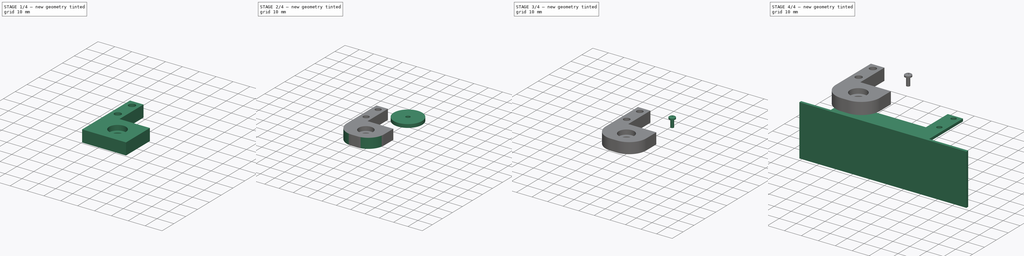
[diagram: build sequence overview — one tinted view per stage of 4, left to right]
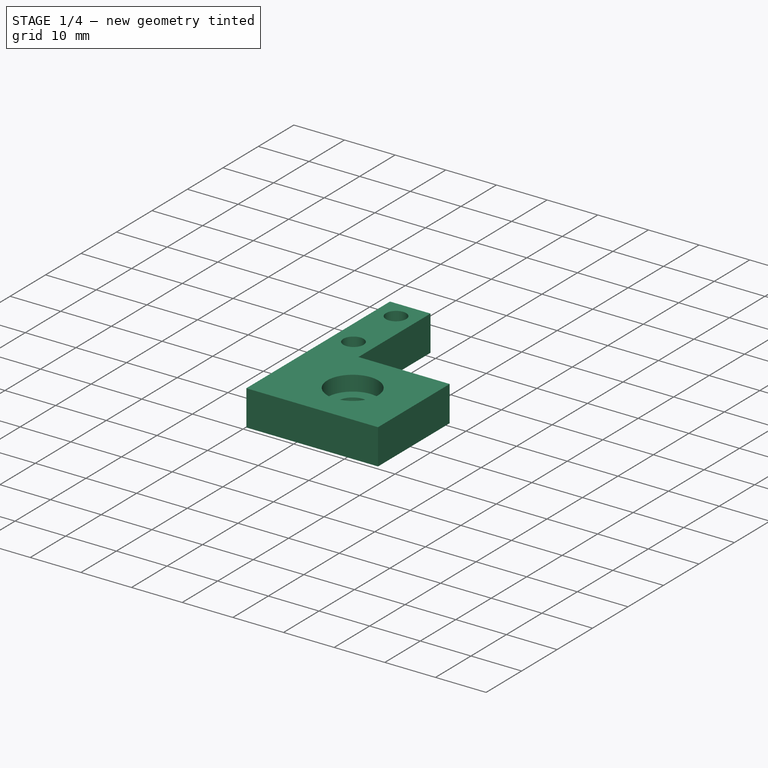
[diagram: stage 1 of 4 — iso view after this stage's code; geometry added in this stage tinted green]
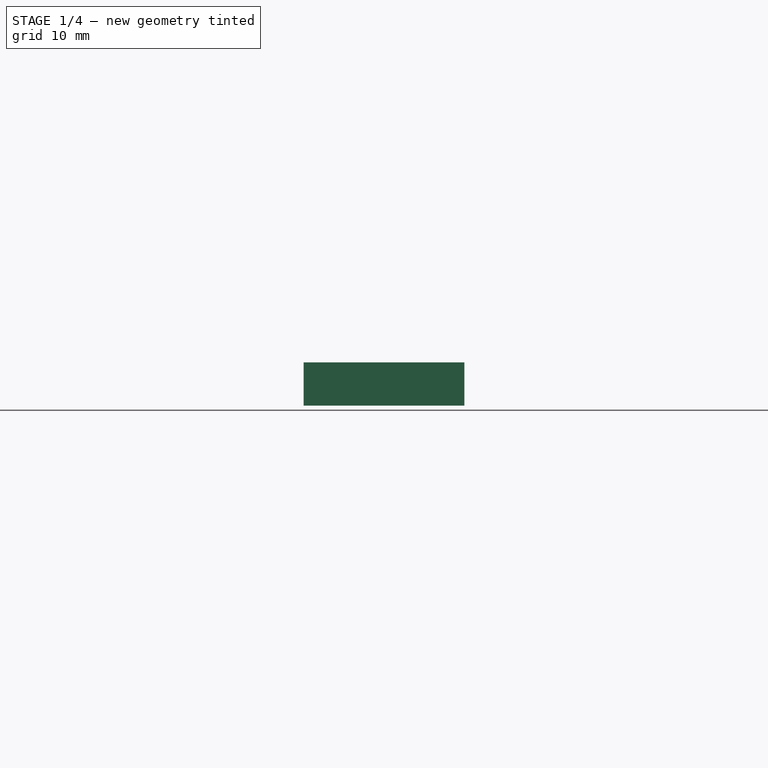
[diagram: stage 1 of 4 — front view after this stage's code; geometry added in this stage tinted green]
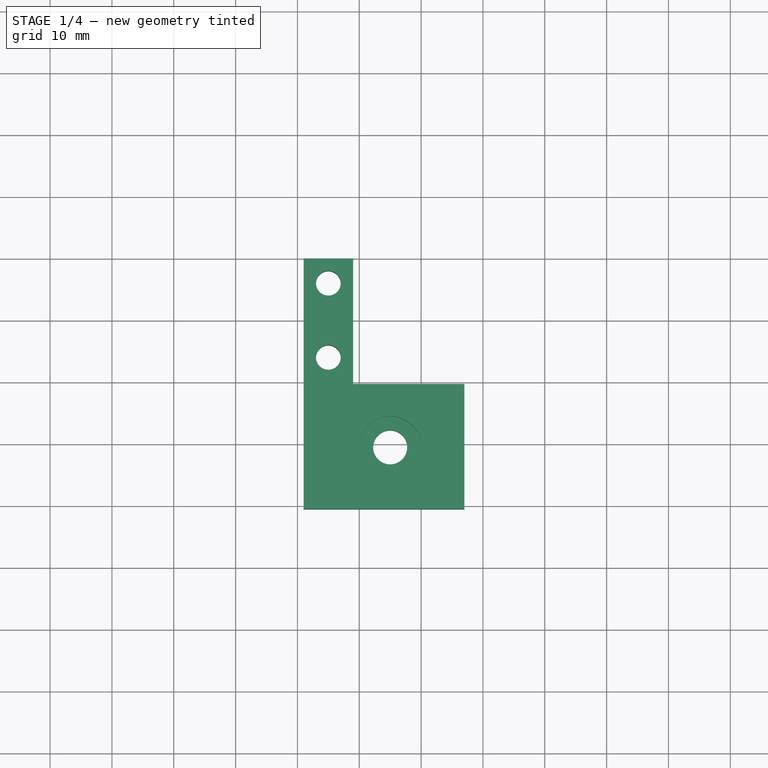
[diagram: stage 1 of 4 — top view after this stage's code; geometry added in this stage tinted green]
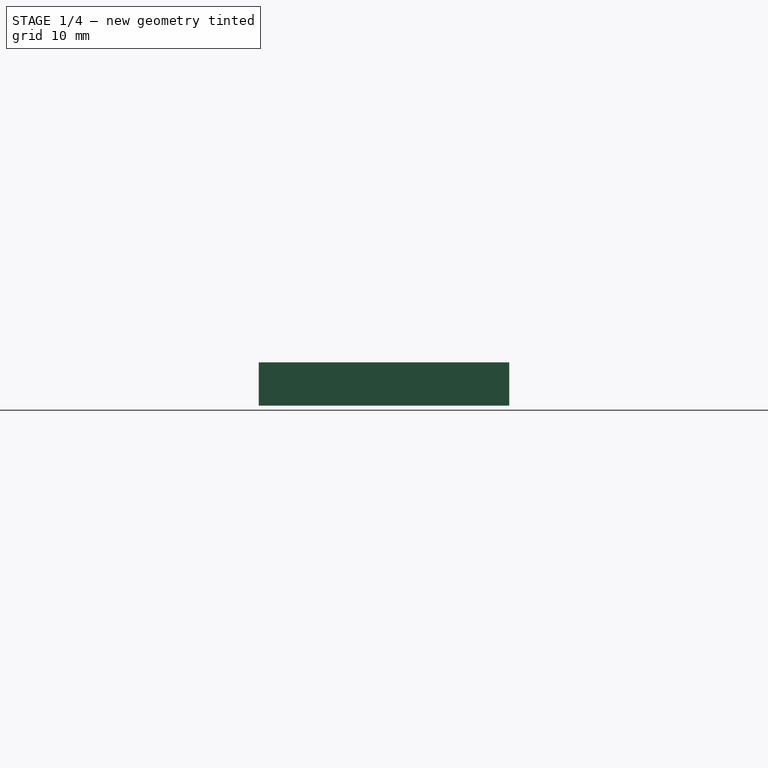
[diagram: stage 1 of 4 — right view after this stage's code; geometry added in this stage tinted green]
FCSTD DOCUMENT  (FreeCAD 0.21R33771 (Git))
Label: servo_DS3218MG
License: All rights reserved
LicenseURL: http://en.wikipedia.org/wiki/All_rights_reserved
objects: Sketcher::SketchObject×6, Part::Feature×3, PartDesign::Body×3, App::Part×3, PartDesign::Pocket×2, PartDesign::Pad×2, App::Link×2, PartDesign::Revolution×1, PartDesign::PolarPattern×1, Part::FeaturePython×1, PartDesign::Hole×1, PartDesign::Fillet×1
note: 28 computed .brp shape members not serialized (recipe doc carries the construction recipe); baked Part::Feature solids carry a one-line shape summary decoded from their .brp

FEATURE [PartDesign::Body] Body001  label="Corps001"
  Group = -> [Sketch002,Pad,Sketch003,Pocket001]
  Origin = -> Origin004
  Placement = pos=(-7,0,0) rot=(0,0,1;0rad)
  Tip = -> Pocket001
FEATURE [App::Link] Link  label="servo_DS3218MG001"
  LinkedObject = -> Part001
FEATURE [App::Part] Part002  label="support_servo_1"
  Group = -> [Body001,Link]
  Origin = -> Origin003
FEATURE [App::Link] Link001  label="servo_DS3218MG002"
  LinkedObject = -> Part001
FEATURE [Sketcher::SketchObject] Sketch004
  FullyConstrained = true
  MapMode = 5
  Placement = pos=(0,0,0) rot=(0,1,0;3.14159rad)
  Support = -> [XY_Plane005]
  sketch-geometry (9):
    g0: LineSegment StartX=29 StartY=10 StartZ=0 EndX=29 EndY=-30.5 EndZ=0
    g1: LineSegment StartX=29 StartY=-30.5 StartZ=0 EndX=3 EndY=-30.5 EndZ=0
    g2: LineSegment StartX=3 StartY=-30.5 StartZ=0 EndX=3 EndY=-10.3 EndZ=0
    g3: LineSegment StartX=3 StartY=-10.3 StartZ=0 EndX=21 EndY=-10.3 EndZ=0
    g4: LineSegment StartX=21 StartY=-10.3 StartZ=0 EndX=21 EndY=10 EndZ=0
    g5: LineSegment StartX=29 StartY=10 StartZ=0 EndX=21 EndY=10 EndZ=0
    g6: Circle CenterX=25 CenterY=6 CenterZ=0 NormalX=0 NormalY=0 NormalZ=1 AngleXU=0 Radius=2
    g7: Circle CenterX=25 CenterY=-6 CenterZ=0 NormalX=0 NormalY=0 NormalZ=1 AngleXU=0 Radius=2
    g8: GeomPoint X=25 Y=10 Z=0
  constraints (24):
    c: Vertical(g0)
    c: Coincident(g1,g2)
    c: Coincident(g2,g3)
    c: Coincident(g3,g4)
    c: Horizontal(g1)
    c: Horizontal(g3)
    c: Vertical(g2)
    c: Vertical(g4)
    c: Coincident(g0,g1)
    c: Coincident(g5,g0)
    c: Horizontal(g5)
    c: DistanceY(g-1,g5) = 10
    c: DistanceX(g3,g0) = 8
    c: Coincident(g4,g5)
    c: Symmetric(g7,g6,g-1)
    c: Equal(g7,g6)
    c: Diameter(g6) = 4
    c: DistanceX(g6) = 25
    c: DistanceY(g6) = 6
    c: Vertical(g8,g6)
    c: Symmetric(g4,g0,g8)
    c: DistanceY(g2,g-1) = 10.3
    c: DistanceY(g0,g0) = 40.5
    c: DistanceX(g3,g3) = 18
FEATURE [PartDesign::Pad] Pad001
  Direction = (0,0,-1)
  Length = 7
  Length2 = 10
  Profile = -> Sketch004
  ReferenceAxis = -> Sketch004 [N_Axis]
  Type = 0
FEATURE [Sketcher::SketchObject] Sketch005
  FullyConstrained = false
  MapMode = 5
  Support = -> [XY_Plane005]
  sketch-geometry (1):
    g0: Circle CenterX=-15 CenterY=-20.5 CenterZ=0 NormalX=0 NormalY=0 NormalZ=1 AngleXU=0 Radius=4.8517
  constraints (2):
    c: DistanceY(g0,g-1) = 20.5
    c: DistanceX(g0,g-1) = 15
FEATURE [PartDesign::Hole] Hole
  BaseFeature = -> Pad001
  CustomThreadClearance = 0
  Depth = 25
  DepthType = 0
  Diameter = 5.5
  DrillForDepth = false
  DrillPoint = 1
  DrillPointAngle = 118
  HoleCutCountersinkAngle = 90
  HoleCutCustomValues = false
  HoleCutDepth = 3
  HoleCutDiameter = 10
  HoleCutType = 1
  ModelThread = false
  Profile = -> Sketch005
  Tapered = false
  TaperedAngle = 90
  ThreadClass = 0
  ThreadDepth = 25
  ThreadDepthType = 0
  ThreadDirection = 0
  ThreadFit = 0
  ThreadSize = 13
  ThreadType = 1
  Threaded = false
  UseCustomThreadClearance = false
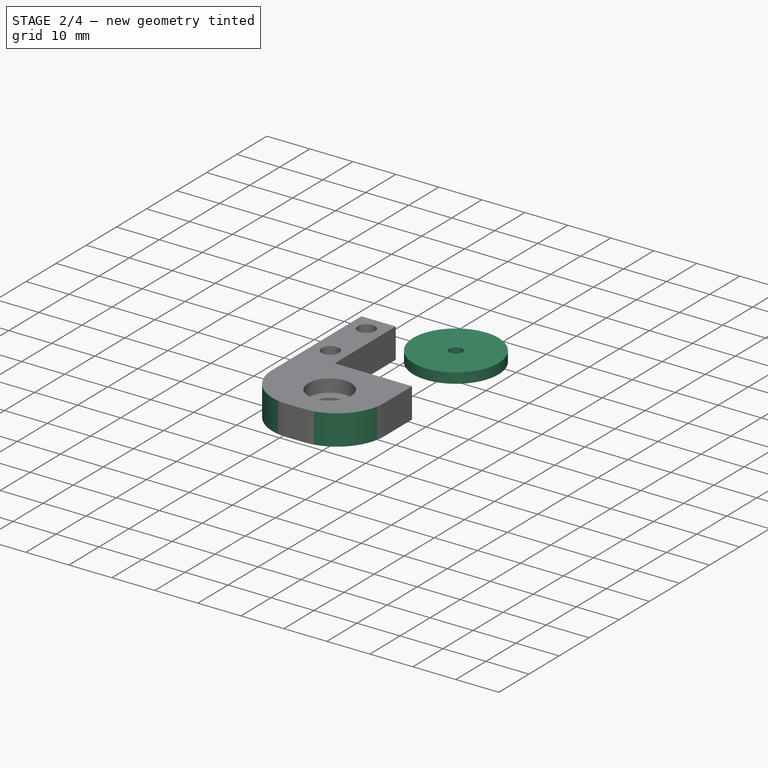
[diagram: stage 2 of 4 — iso view after this stage's code; geometry added in this stage tinted green]
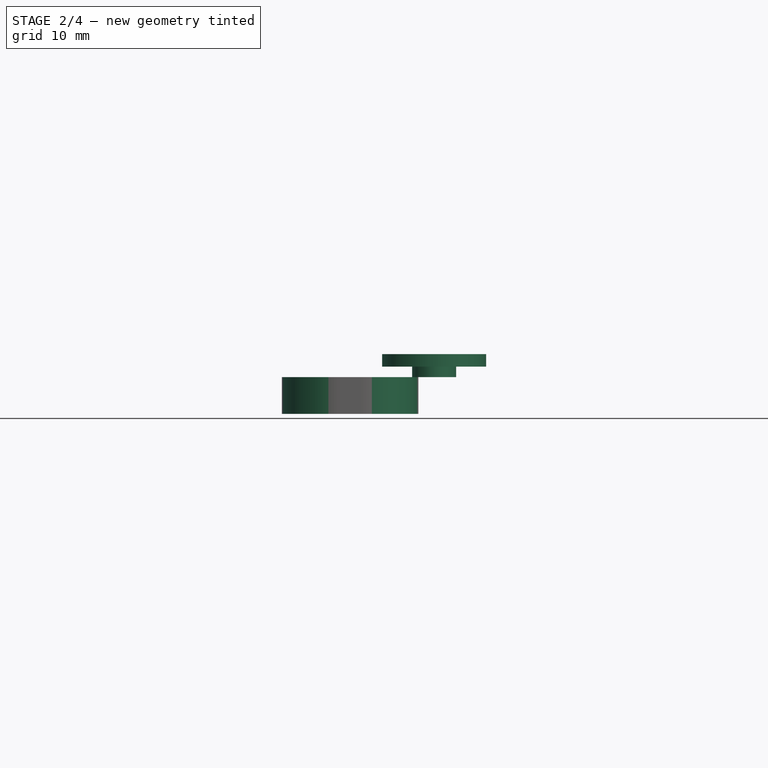
[diagram: stage 2 of 4 — front view after this stage's code; geometry added in this stage tinted green]
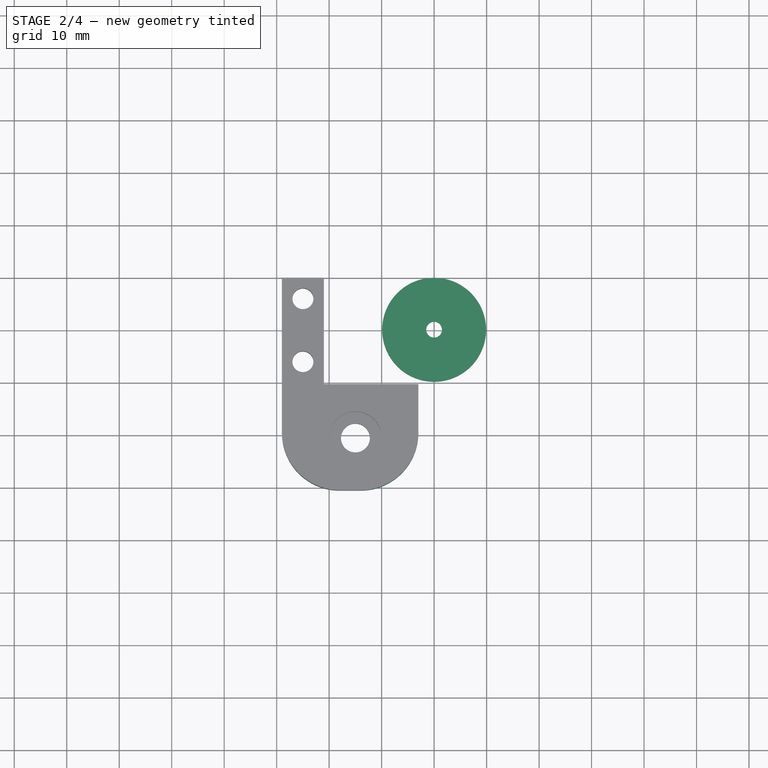
[diagram: stage 2 of 4 — top view after this stage's code; geometry added in this stage tinted green]
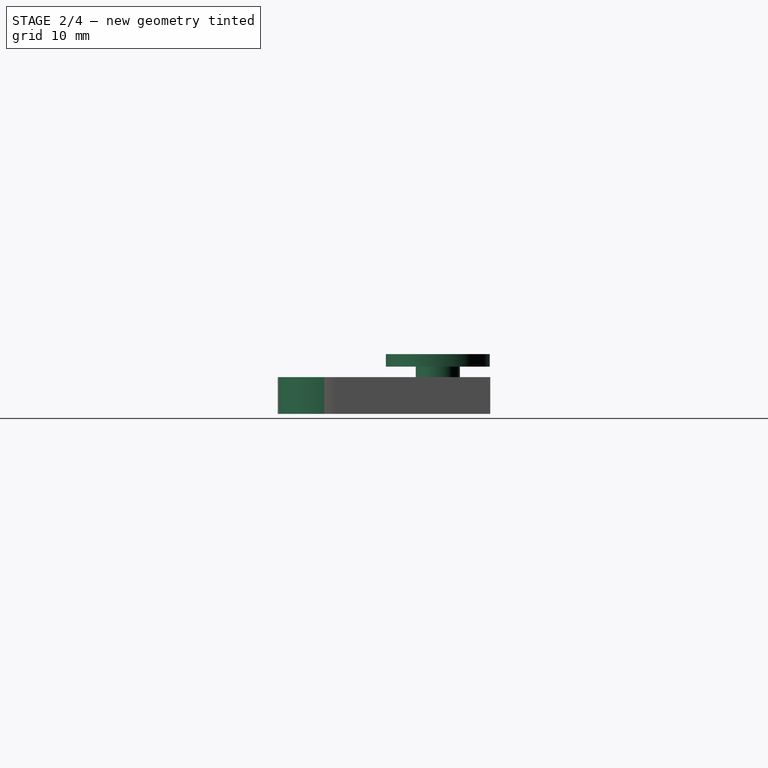
[diagram: stage 2 of 4 — right view after this stage's code; geometry added in this stage tinted green]
FEATURE [Part::Feature] Part__Feature  label="Lever 25T"
  Placement = pos=(0,0,0) rot=(-1,0,0;1.5708rad)
  shape: bbox 18.84 x 33.03 x 6.019 mm, 125 faces (baked)
FEATURE [Part::Feature] Part__Feature001  label="Axis Servo"
  Placement = pos=(0,0,0) rot=(-1,0,0;1.5708rad)
  shape: bbox 5 x 5 x 8 mm, 5 faces (baked)
FEATURE [Part::Feature] Part__Feature002  label="Servo DS3218MG"
  Placement = pos=(0,0,0) rot=(-1,0,0;1.5708rad)
  shape: bbox 55 x 20 x 41 mm, 772 faces (baked)
FEATURE [Sketcher::SketchObject] Sketch001
  FullyConstrained = true
  MapMode = 5
  Support = -> [XY_Plane002]
  sketch-geometry (1):
    g0: Circle CenterX=-7 CenterY=0 CenterZ=0 NormalX=0 NormalY=0 NormalZ=1 AngleXU=0 Radius=1.2
  constraints (3):
    c: PointOnObject(g0,g-1)
    c: Diameter(g0) = 2.4
    c: DistanceX(g0,g-1) = 7
FEATURE [Sketcher::SketchObject] Sketch
  FullyConstrained = true
  MapMode = 5
  Placement = pos=(0,0,0) rot=(1,0,0;1.5708rad)
  Support = -> [XZ_Plane002]
  expr: Constraints[19] = 19.8 / 2
  sketch-geometry (8):
    g0: LineSegment StartX=2.5 StartY=3.4 StartZ=0 EndX=2.5 EndY=0 EndZ=0
    g1: LineSegment StartX=2.5 StartY=0 StartZ=0 EndX=4.2 EndY=0 EndZ=0
    g2: LineSegment StartX=4.2 StartY=0 StartZ=0 EndX=4.2 EndY=2 EndZ=0
    g3: LineSegment StartX=4.2 StartY=2 StartZ=0 EndX=9.9 EndY=2 EndZ=0
    g4: LineSegment StartX=9.9 StartY=2 StartZ=0 EndX=9.9 EndY=4.4 EndZ=0
    g5: LineSegment StartX=9.9 StartY=4.4 StartZ=0 EndX=1.5 EndY=4.4 EndZ=0
    g6: LineSegment StartX=1.5 StartY=4.4 StartZ=0 EndX=1.5 EndY=3.4 EndZ=0
    g7: LineSegment StartX=1.5 StartY=3.4 StartZ=0 EndX=2.5 EndY=3.4 EndZ=0
  constraints (24):
    c: PointOnObject(g0,g-1)
    c: Vertical(g0)
    c: Coincident(g1,g0)
    c: PointOnObject(g1,g-1)
    c: Coincident(g2,g1)
    c: Vertical(g2)
    c: Coincident(g3,g2)
    c: Horizontal(g3)
    c: Coincident(g4,g3)
    c: Vertical(g4)
    c: Coincident(g5,g4)
    c: Horizontal(g5)
    c: Coincident(g6,g5)
    c: Coincident(g7,g6)
    c: Coincident(g7,g0)
    c: Horizontal(g7)
    c: Vertical(g6)
    c: DistanceY(g4,g4) = 2.4
    c: DistanceY(g2,g2) = 2
    c: DistanceX(g-1,g4) = 9.9
    c: DistanceX(g-1,g6) = 1.5
    c: DistanceY(g0,g0) = 3.4
    c: DistanceX(g-1,g0) = 2.5
    c: DistanceX(g1,g1) = 1.7
FEATURE [PartDesign::Revolution] Revolution
  Angle = 360
  Axis = (0,2e-16,1)
  Base = (0,0,0)
  Placement = pos=(0,0,0) rot=(1,0,0;1.5708rad)
  Profile = -> Sketch
  ReferenceAxis = -> Sketch [V_Axis]
  Reversed = true
FEATURE [PartDesign::Fillet] Fillet
  Base = -> Hole [Edge2,Edge8]
  BaseFeature = -> Hole
  Radius = 11
  SupportTransform = false
  UseAllEdges = false
FEATURE [PartDesign::Body] Body002  label="Corps002"
  Group = -> [Sketch004,Pad001,Sketch005,Hole,Fillet]
  Origin = -> Origin005
  Placement = pos=(-9.5,0,-14) rot=(0,0,1;0rad)
  Tip = -> Fillet
FEATURE [App::Part] Part  label="support_servo_2"
  Group = -> [Link001,Body002]
  Origin = -> Origin
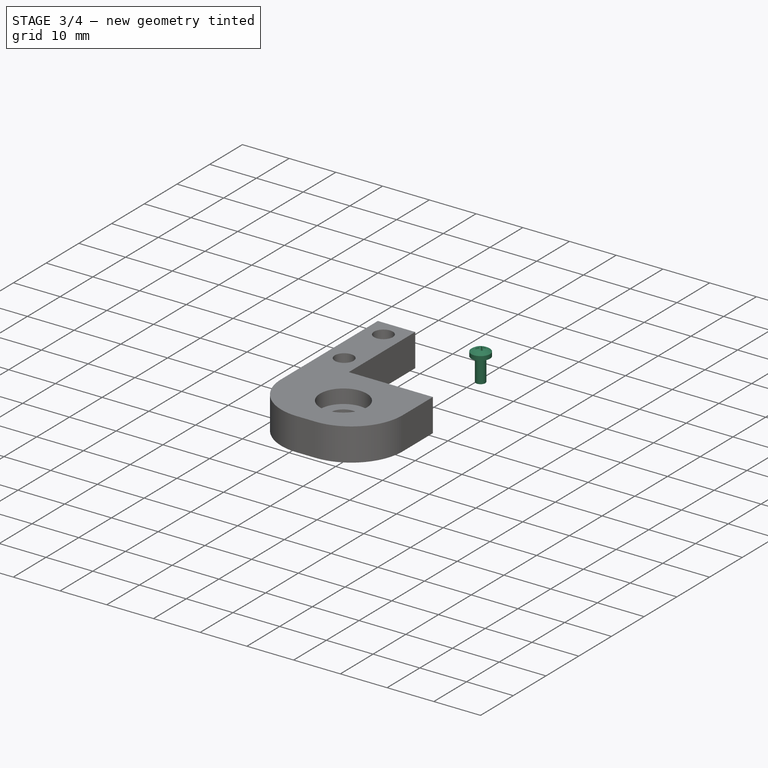
[diagram: stage 3 of 4 — iso view after this stage's code; geometry added in this stage tinted green]
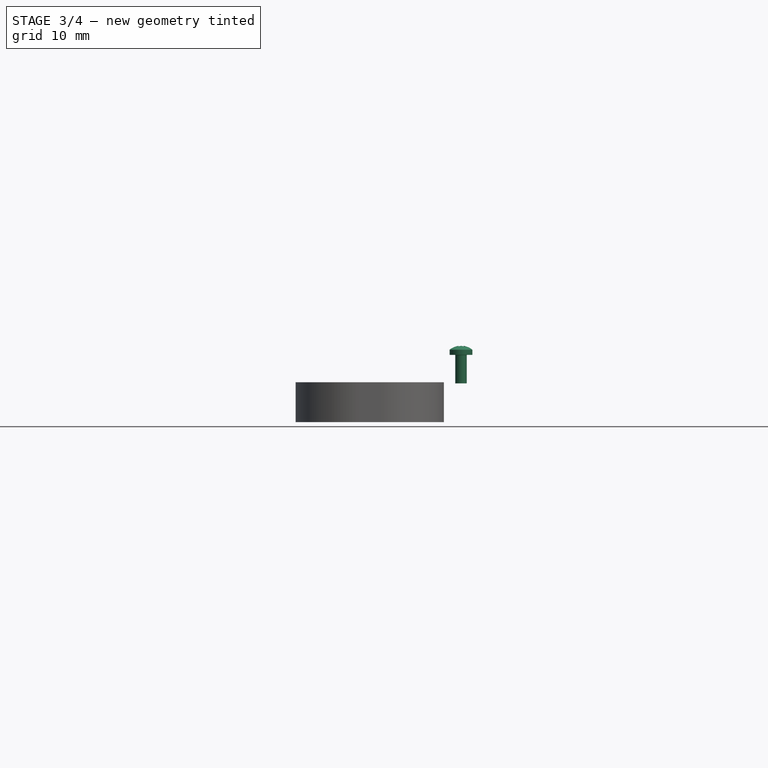
[diagram: stage 3 of 4 — front view after this stage's code; geometry added in this stage tinted green]
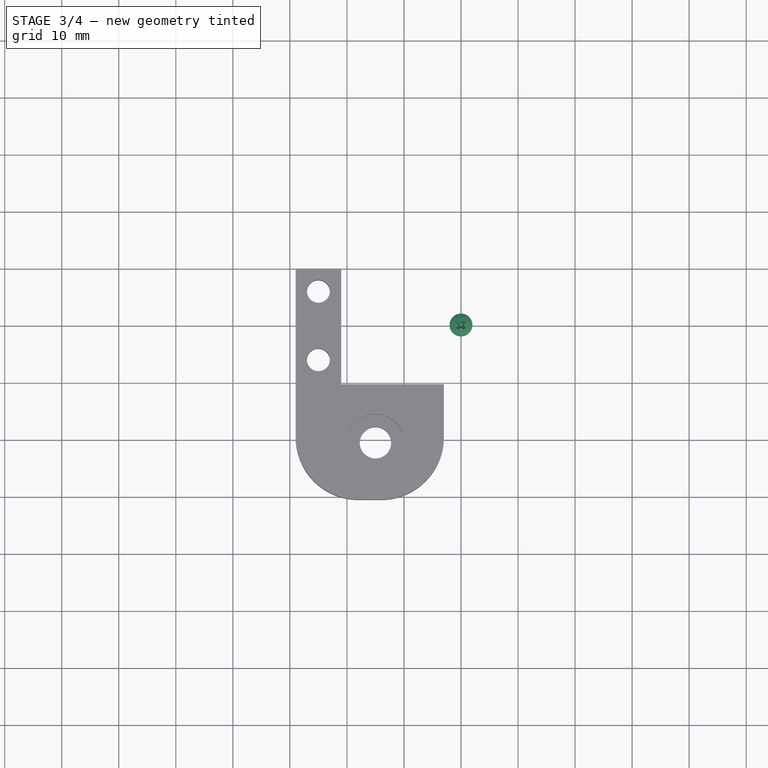
[diagram: stage 3 of 4 — top view after this stage's code; geometry added in this stage tinted green]
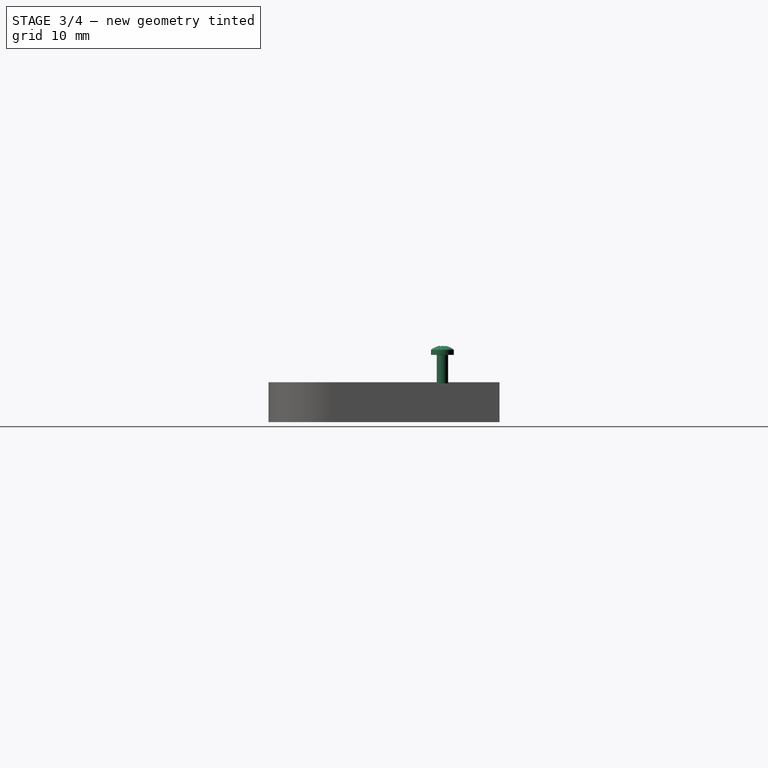
[diagram: stage 3 of 4 — right view after this stage's code; geometry added in this stage tinted green]
FEATURE [PartDesign::Pocket] Pocket
  BaseFeature = -> Revolution
  Direction = (0,0,-1)
  Length = 5
  Length2 = 5
  Midplane = true
  Placement = pos=(0,0,0) rot=(1,0,0;1.5708rad)
  Profile = -> Sketch001
  ReferenceAxis = -> Sketch001 [N_Axis]
  Type = 1
FEATURE [PartDesign::PolarPattern] PolarPattern
  Angle = 360
  Axis = -> Sketch001 [N_Axis]
  BaseFeature = -> Pocket
  Occurrences = 4
  Originals = -> [Pocket]
  Placement = pos=(0,0,0) rot=(1,0,0;1.5708rad)
FEATURE [PartDesign::Body] Body  label="Corps"
  Group = -> [Sketch,Revolution,Sketch001,Pocket,PolarPattern]
  Origin = -> Origin002
  Placement = pos=(0,0,0.4) rot=(0,0,1;0rad)
  Tip = -> PolarPattern
FEATURE [Part::FeaturePython] Screw002  label="M2x5-Vis"  # Fasteners workbench fastener (typed FeaturePython)
  Placement = pos=(0,3.4e-15,4.8) rot=(0,0,1;0rad)
  baseObject = -> Body [Edge6]
  diameter = 2
  invert = true
  leftHanded = false
  length = 10
  lengthCustom = 5
  matchOuter = false
  offset = 0
  thread = false
  type = 75
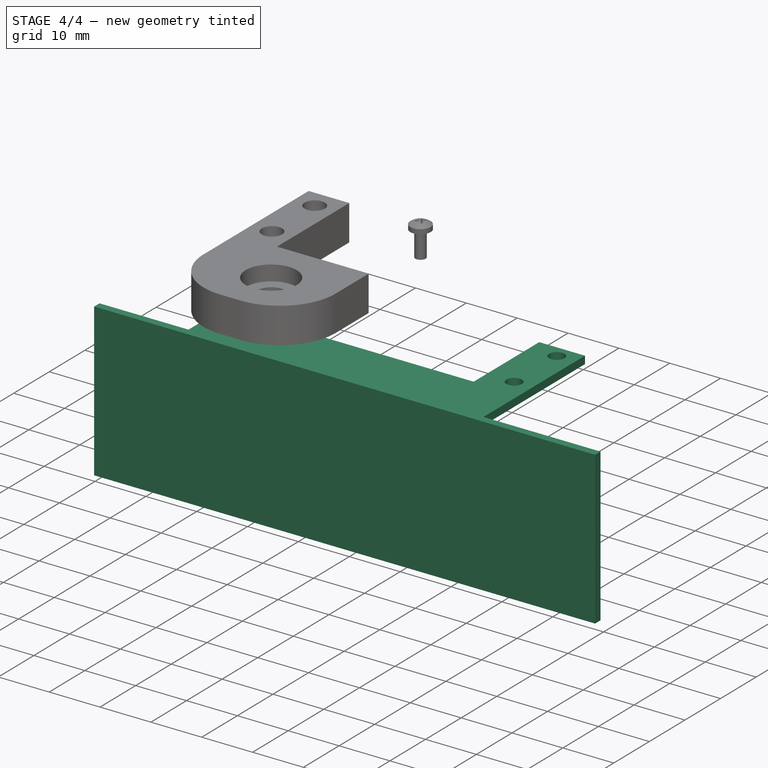
[diagram: stage 4 of 4 — iso view after this stage's code; geometry added in this stage tinted green]
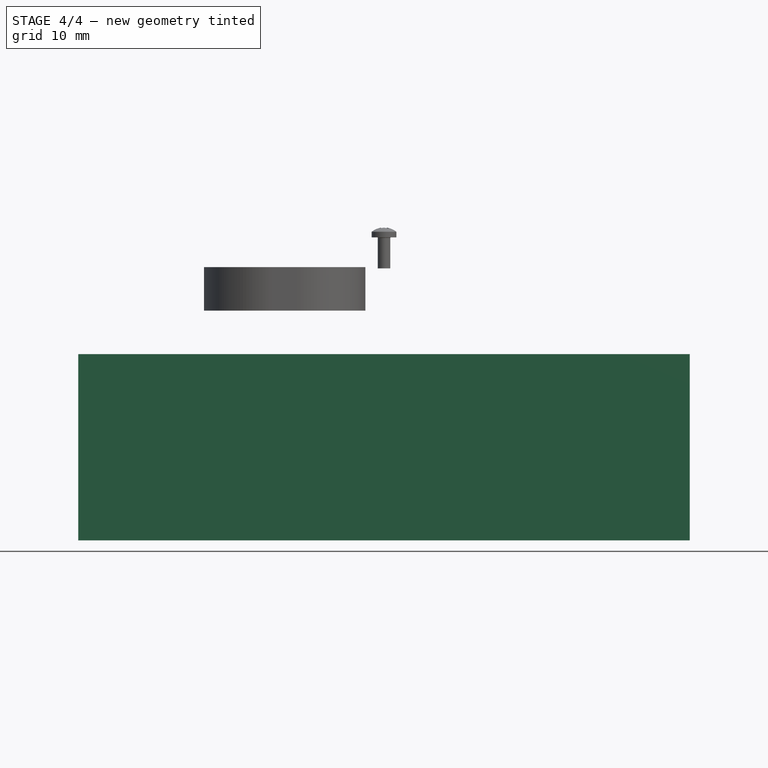
[diagram: stage 4 of 4 — front view after this stage's code; geometry added in this stage tinted green]
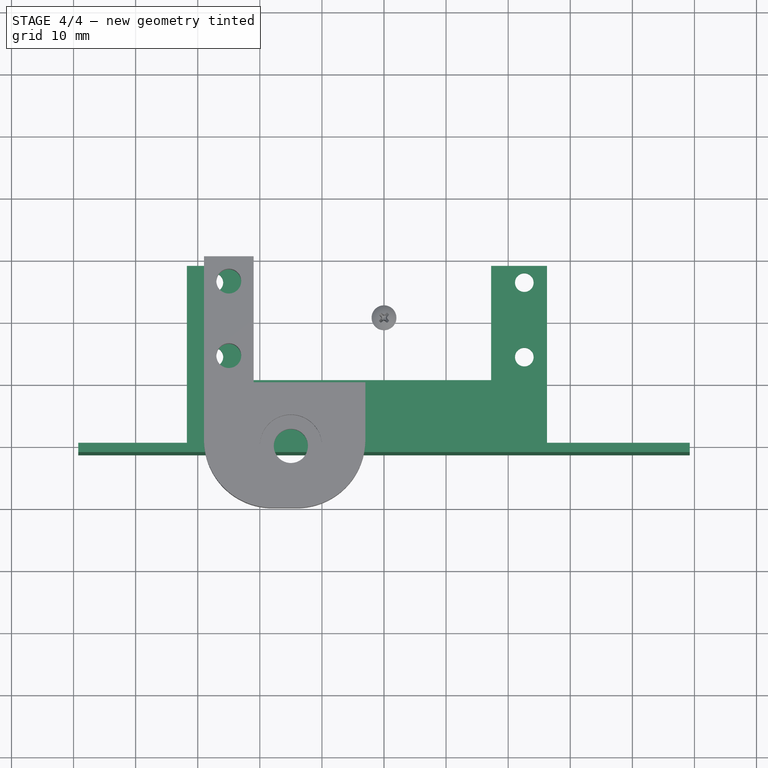
[diagram: stage 4 of 4 — top view after this stage's code; geometry added in this stage tinted green]
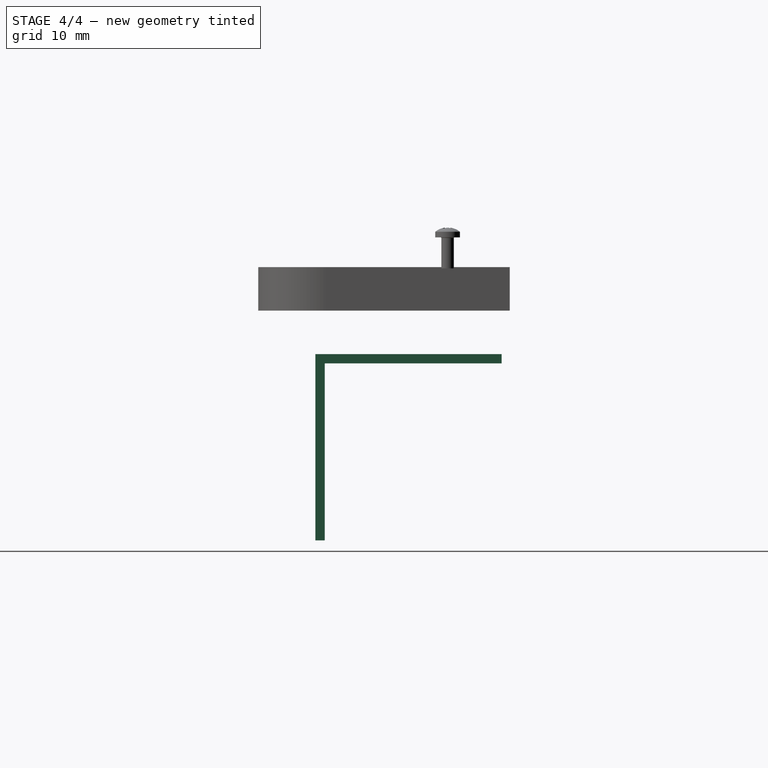
[diagram: stage 4 of 4 — right view after this stage's code; geometry added in this stage tinted green]
FEATURE [App::Part] Part001  label="servo_DS3218MG"
  Group = -> [Part__Feature,Part__Feature001,Part__Feature002,Body,Screw002]
  Origin = -> Origin001
FEATURE [Sketcher::SketchObject] Sketch002
  AttachmentOffset = pos=(0,-14,0) rot=(0,0,1;0rad)
  FullyConstrained = true
  MapMode = 5
  Placement = pos=(3.1e-15,-3.1e-15,-14) rot=(0.57735,0.57735,0.57735;2.0944rad)
  Support = -> [YZ_Plane004]
  sketch-geometry (6):
    g0: LineSegment StartX=-21.3 StartY=-30 StartZ=0 EndX=-21.3 EndY=0 EndZ=0
    g1: LineSegment StartX=-21.3 StartY=0 StartZ=0 EndX=8.7 EndY=0 EndZ=0
    g2: LineSegment StartX=8.7 StartY=0 StartZ=0 EndX=8.7 EndY=-1.5 EndZ=0
    g3: LineSegment StartX=8.7 StartY=-1.5 StartZ=0 EndX=-19.8 EndY=-1.5 EndZ=0
    g4: LineSegment StartX=-19.8 StartY=-1.5 StartZ=0 EndX=-19.8 EndY=-30 EndZ=0
    g5: LineSegment StartX=-21.3 StartY=-30 StartZ=0 EndX=-19.8 EndY=-30 EndZ=0
  constraints (18):
    c: Vertical(g0)
    c: Coincident(g1,g0)
    c: PointOnObject(g1,g-1)
    c: Horizontal(g1)
    c: Coincident(g2,g1)
    c: Vertical(g2)
    c: Coincident(g3,g2)
    c: Horizontal(g3)
    c: Coincident(g4,g3)
    c: Vertical(g4)
    c: Coincident(g5,g0)
    c: Coincident(g5,g4)
    c: Horizontal(g5)
    c: Equal(g5,g2)
    c: DistanceX(g5,g5) = 1.5
    c: DistanceY(g0,g0) = 30
    c: DistanceX(g1,g1) = 30
    c: DistanceX(g-1,g1) = 8.7
FEATURE [PartDesign::Pad] Pad
  Direction = (1,-2e-16,3e-16)
  Length = 98.5
  Length2 = 10
  Midplane = true
  Placement = pos=(0,0,0) rot=(0.57735,0.57735,0.57735;2.0944rad)
  Profile = -> Sketch002
  ReferenceAxis = -> Sketch002 [N_Axis]
  Type = 0
FEATURE [Sketcher::SketchObject] Sketch003
  ExternalGeometry = -> [Pad]
  FullyConstrained = true
  MapMode = 5
  Support = -> [XY_Plane004]
  sketch-geometry (18):
    g0: LineSegment StartX=49.25 StartY=8.7 StartZ=0 EndX=26.25 EndY=8.7 EndZ=0
    g1: LineSegment StartX=26.25 StartY=8.7 StartZ=0 EndX=26.25 EndY=-19.8 EndZ=0
    g2: LineSegment StartX=26.25 StartY=-19.8 StartZ=0 EndX=49.25 EndY=-19.8 EndZ=0
    g3: LineSegment StartX=49.25 StartY=-19.8 StartZ=0 EndX=49.25 EndY=8.7 EndZ=0
    g4: LineSegment StartX=-49.25 StartY=8.7 StartZ=0 EndX=-31.75 EndY=8.7 EndZ=0
    g5: LineSegment StartX=-31.75 StartY=8.7 StartZ=0 EndX=-31.75 EndY=-19.8 EndZ=0
    g6: LineSegment StartX=-31.75 StartY=-19.8 StartZ=0 EndX=-49.25 EndY=-19.8 EndZ=0
    g7: LineSegment StartX=-49.25 StartY=-19.8 StartZ=0 EndX=-49.25 EndY=8.7 EndZ=0
    g8: LineSegment StartX=-22.75 StartY=8.7 StartZ=0 EndX=17.25 EndY=8.7 EndZ=0
    g9: LineSegment StartX=17.25 StartY=8.7 StartZ=0 EndX=17.25 EndY=-9.7 EndZ=0
    g10: LineSegment StartX=17.25 StartY=-9.7 StartZ=0 EndX=-22.75 EndY=-9.7 EndZ=0
    g11: LineSegment StartX=-22.75 StartY=-9.7 StartZ=0 EndX=-22.75 EndY=8.7 EndZ=0
    g12: LineSegment StartX=-22.75 StartY=8.7 StartZ=0 EndX=-31.75 EndY=8.7 EndZ=0
    g13: LineSegment StartX=17.25 StartY=8.7 StartZ=0 EndX=26.25 EndY=8.7 EndZ=0
    g14: Circle CenterX=22.6 CenterY=6 CenterZ=0 NormalX=0 NormalY=0 NormalZ=1 AngleXU=0 Radius=1.5
    g15: Circle CenterX=22.6 CenterY=-6 CenterZ=0 NormalX=0 NormalY=0 NormalZ=1 AngleXU=0 Radius=1.5
    g16: Circle CenterX=-27.4 CenterY=6 CenterZ=0 NormalX=0 NormalY=0 NormalZ=1 AngleXU=0 Radius=1.5
    g17: Circle CenterX=-27.4 CenterY=-6 CenterZ=0 NormalX=0 NormalY=0 NormalZ=1 AngleXU=0 Radius=1.5
  constraints (49):
    c: Coincident(g0,g1)
    c: Coincident(g1,g2)
    c: Coincident(g2,g3)
    c: Coincident(g3,g0)
    c: Horizontal(g0)
    c: Horizontal(g2)
    c: Vertical(g1)
    c: Vertical(g3)
    c: Coincident(g4,g5)
    c: Coincident(g5,g6)
    c: Coincident(g6,g7)
    c: Coincident(g7,g4)
    c: Horizontal(g4)
    c: Horizontal(g6)
    c: Vertical(g5)
    c: Vertical(g7)
    c: DistanceX(g0,g0) = 23
    c: Coincident(g0,g-3)
    c: DistanceY(g-3,g2) = 1.5
    c: DistanceX(g4,g4) = 17.5
    c: Coincident(g4,g-4)
    c: Horizontal(g5,g1)
    c: Coincident(g8,g9)
    c: Coincident(g9,g10)
    c: Coincident(g10,g11)
    c: Coincident(g11,g8)
    c: Horizontal(g8)
    c: Horizontal(g10)
    c: Vertical(g9)
    c: Vertical(g11)
    c: DistanceY(g-4,g10) = 11.6
    c: Horizontal(g4,g8)
    c: DistanceX(g8,g8) = 40
    c: Coincident(g12,g8)
    c: Coincident(g12,g4)
    c: Coincident(g13,g8)
    c: Coincident(g13,g0)
    c: Equal(g12,g13)
    c: Horizontal(g16,g14)
    c: Vertical(g14,g15)
    c: Horizontal(g15,g17)
    c: Equal(g16,g17)
    c: Equal(g16,g15)
    c: Equal(g16,g14)
    c: Diameter(g16) = 3
    c: DistanceX(g16,g14) = 50
    c: DistanceY(g17,g16) = 12
    c: Symmetric(g16,g17,g-1)
    c: DistanceX(g16,g-1) = 27.4
FEATURE [PartDesign::Pocket] Pocket001
  BaseFeature = -> Pad
  Direction = (0,0,-1)
  Length = 5
  Length2 = 5
  Placement = pos=(0,0,0) rot=(0.57735,0.57735,0.57735;2.0944rad)
  Profile = -> Sketch003
  ReferenceAxis = -> Sketch003 [N_Axis]
  Type = 1
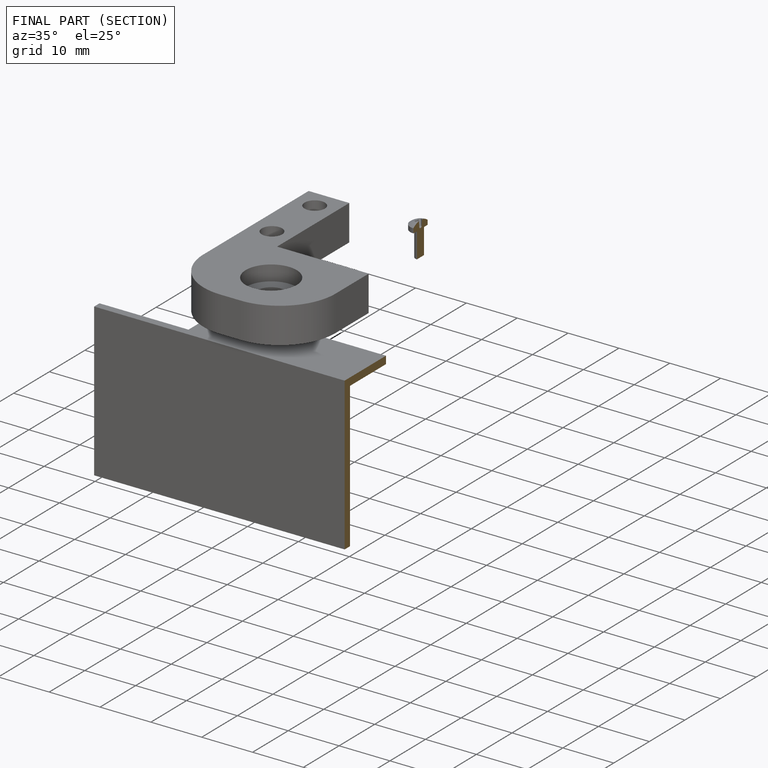
[diagram: finished part — half-section view (interior)]
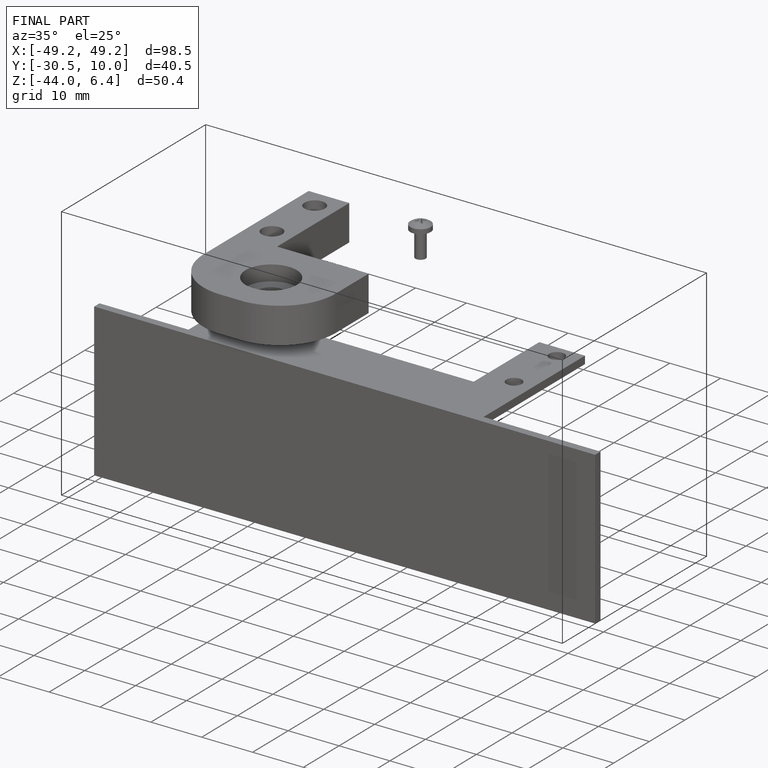
[diagram: finished part — iso view with bounding-box wireframe]
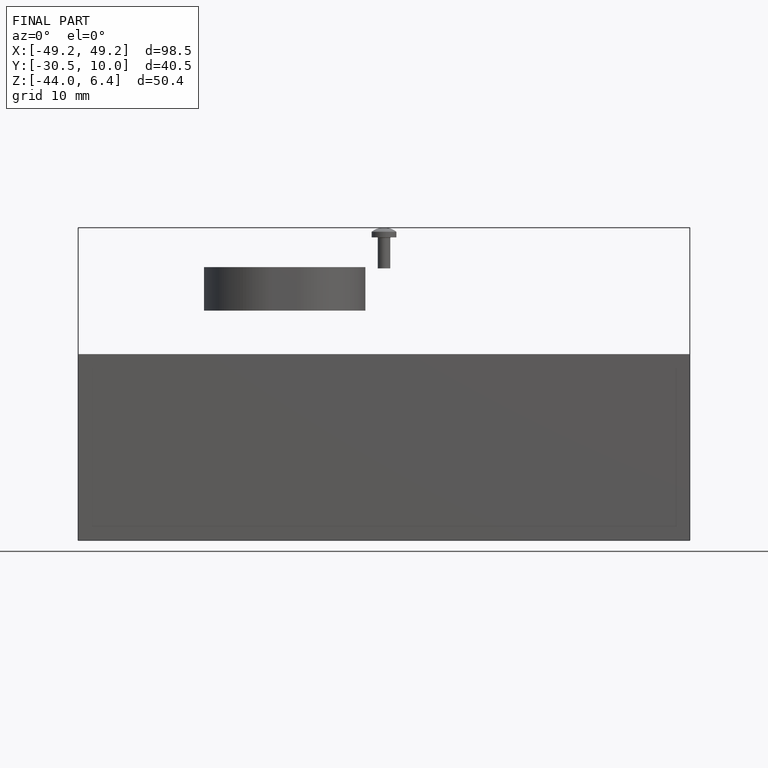
[diagram: finished part — front view with bounding-box wireframe]
